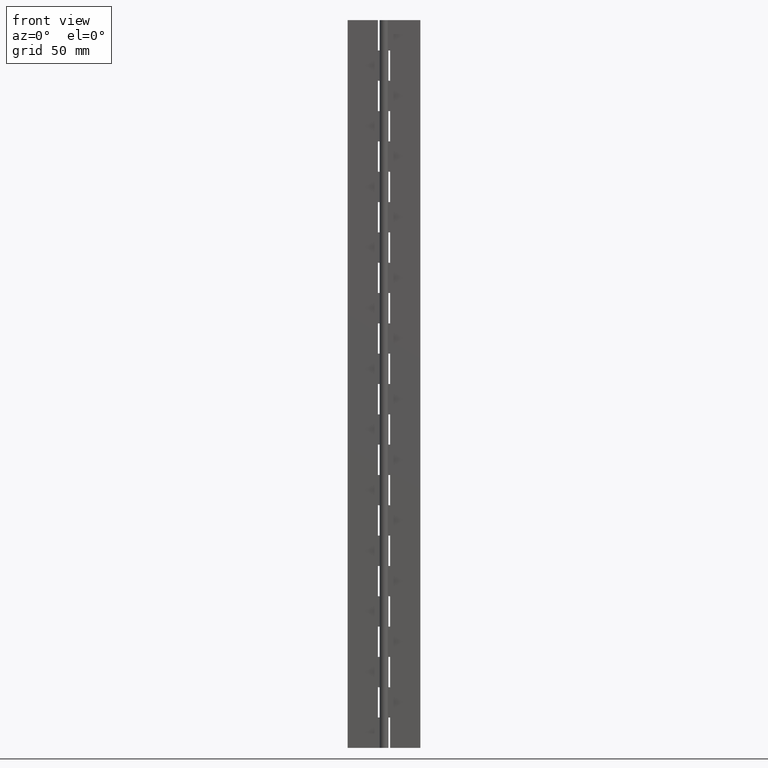
[diagram: clean part render]
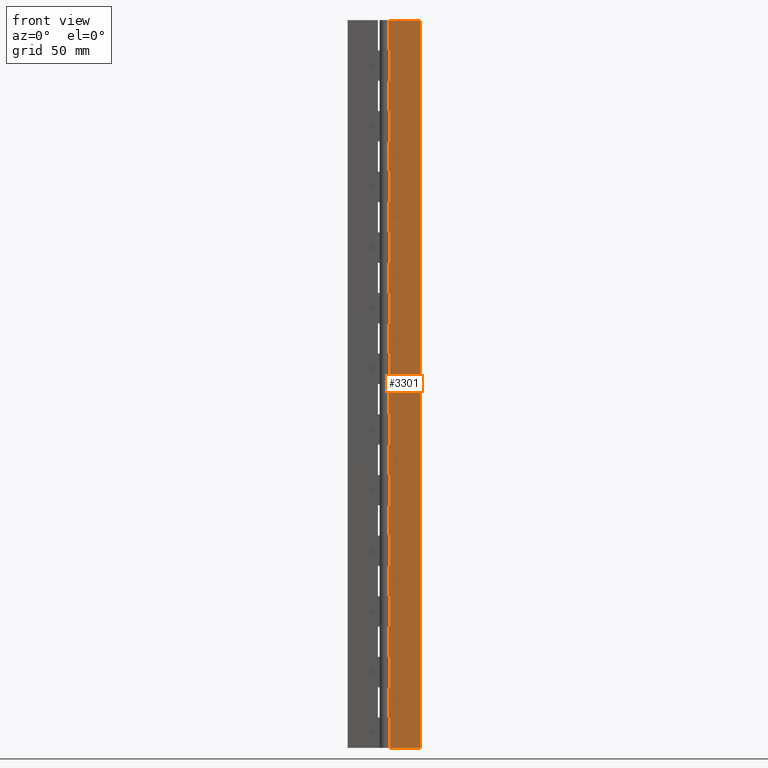
[diagram: same view with one face highlighted and labeled with its STEP entity id]
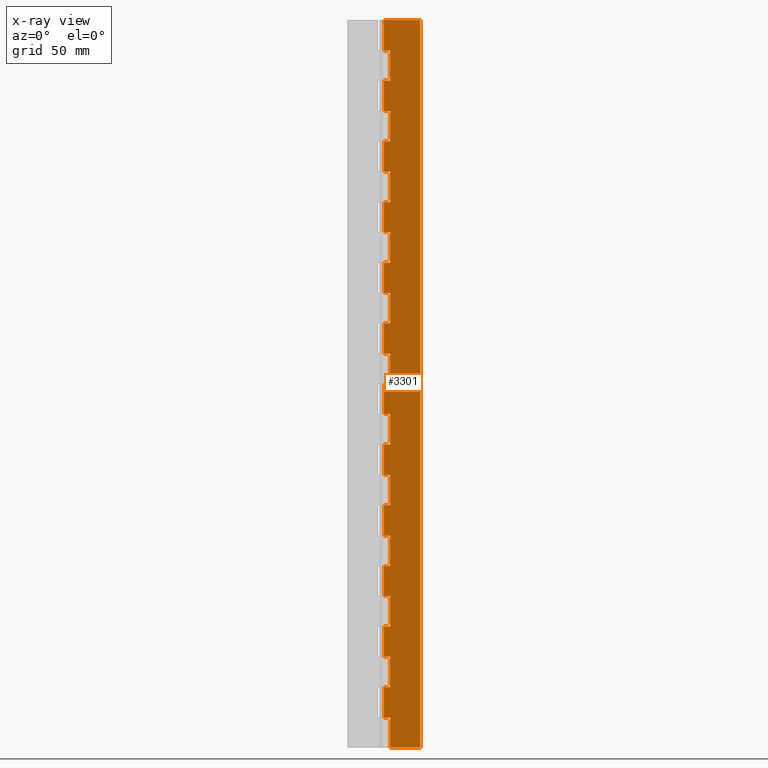
[diagram: x-ray of the same camera — body ghosted, the highlighted face saturated]
A machine part, front view. The second image highlights one B-rep face of the part: STEP entity #3301.
The next image is the same camera in x-ray: the body ghosted, the highlighted face saturated — about 0% of this face is hidden behind the body in this view.
In plain terms, the highlighted face is a freeform B-spline surface patch.
Its self-contained STEP definition (entity closure, byte-faithful):
#51=CARTESIAN_POINT('',(0.0,1.0,287.500000000000000));
#52=VERTEX_POINT('',#51);
#107=CARTESIAN_POINT('',(2.500000000000200,1.0,287.500000000000000));
#108=VERTEX_POINT('',#107);
#114=CARTESIAN_POINT('',(0.0,1.0,287.500000000000000));
#115=CARTESIAN_POINT('',(2.500000000000200,1.0,287.500000000000000));
#116=QUASI_UNIFORM_CURVE('',1,(#114,#115),.UNSPECIFIED.,.F.,.U.);
#117=EDGE_CURVE('',#52,#108,#116,.T.);
#135=CARTESIAN_POINT('',(2.500000000000200,1.0,275.0));
#136=VERTEX_POINT('',#135);
#142=CARTESIAN_POINT('',(2.500000000000200,1.0,287.500000000000000));
#143=CARTESIAN_POINT('',(2.500000000000200,1.0,275.0));
#144=QUASI_UNIFORM_CURVE('',1,(#142,#143),.UNSPECIFIED.,.F.,.U.);
#145=EDGE_CURVE('',#108,#136,#144,.T.);
#191=CARTESIAN_POINT('',(0.0,1.0,275.0));
#192=VERTEX_POINT('',#191);
#212=CARTESIAN_POINT('',(2.500000000000200,1.0,275.0));
#213=CARTESIAN_POINT('',(0.0,1.0,275.0));
#214=QUASI_UNIFORM_CURVE('',1,(#212,#213),.UNSPECIFIED.,.F.,.U.);
#215=EDGE_CURVE('',#136,#192,#214,.T.);
#227=CARTESIAN_POINT('',(0.0,1.0,262.500000000000000));
#228=VERTEX_POINT('',#227);
#283=CARTESIAN_POINT('',(2.500000000000200,1.0,262.500000000000000));
#284=VERTEX_POINT('',#283);
#290=CARTESIAN_POINT('',(0.0,1.0,262.500000000000000));
#291=CARTESIAN_POINT('',(2.500000000000200,1.0,262.500000000000000));
#292=QUASI_UNIFORM_CURVE('',1,(#290,#291),.UNSPECIFIED.,.F.,.U.);
#293=EDGE_CURVE('',#228,#284,#292,.T.);
#311=CARTESIAN_POINT('',(2.500000000000200,1.0,250.0));
#312=VERTEX_POINT('',#311);
#318=CARTESIAN_POINT('',(2.500000000000200,1.0,262.500000000000000));
#319=CARTESIAN_POINT('',(2.500000000000200,1.0,250.0));
#320=QUASI_UNIFORM_CURVE('',1,(#318,#319),.UNSPECIFIED.,.F.,.U.);
#321=EDGE_CURVE('',#284,#312,#320,.T.);
#367=CARTESIAN_POINT('',(0.0,1.0,250.0));
#368=VERTEX_POINT('',#367);
#388=CARTESIAN_POINT('',(2.500000000000200,1.0,250.0));
#389=CARTESIAN_POINT('',(0.0,1.0,250.0));
#390=QUASI_UNIFORM_CURVE('',1,(#388,#389),.UNSPECIFIED.,.F.,.U.);
#391=EDGE_CURVE('',#312,#368,#390,.T.);
#403=CARTESIAN_POINT('',(0.0,1.0,237.500000000000000));
#404=VERTEX_POINT('',#403);
#459=CARTESIAN_POINT('',(2.500000000000200,1.0,237.500000000000000));
#460=VERTEX_POINT('',#459);
#466=CARTESIAN_POINT('',(0.0,1.0,237.500000000000000));
#467=CARTESIAN_POINT('',(2.500000000000200,1.0,237.500000000000000));
#468=QUASI_UNIFORM_CURVE('',1,(#466,#467),.UNSPECIFIED.,.F.,.U.);
#469=EDGE_CURVE('',#404,#460,#468,.T.);
#487=CARTESIAN_POINT('',(2.500000000000200,1.0,225.0));
#488=VERTEX_POINT('',#487);
#494=CARTESIAN_POINT('',(2.500000000000200,1.0,237.500000000000000));
#495=CARTESIAN_POINT('',(2.500000000000200,1.0,225.0));
#496=QUASI_UNIFORM_CURVE('',1,(#494,#495),.UNSPECIFIED.,.F.,.U.);
#497=EDGE_CURVE('',#460,#488,#496,.T.);
#543=CARTESIAN_POINT('',(0.0,1.0,225.0));
#544=VERTEX_POINT('',#543);
#564=CARTESIAN_POINT('',(2.500000000000200,1.0,225.0));
#565=CARTESIAN_POINT('',(0.0,1.0,225.0));
#566=QUASI_UNIFORM_CURVE('',1,(#564,#565),.UNSPECIFIED.,.F.,.U.);
#567=EDGE_CURVE('',#488,#544,#566,.T.);
#579=CARTESIAN_POINT('',(0.0,1.0,212.500000000000000));
#580=VERTEX_POINT('',#579);
#635=CARTESIAN_POINT('',(2.500000000000200,1.0,212.500000000000000));
#636=VERTEX_POINT('',#635);
#642=CARTESIAN_POINT('',(0.0,1.0,212.500000000000000));
#643=CARTESIAN_POINT('',(2.500000000000200,1.0,212.500000000000000));
#644=QUASI_UNIFORM_CURVE('',1,(#642,#643),.UNSPECIFIED.,.F.,.U.);
#645=EDGE_CURVE('',#580,#636,#644,.T.);
#663=CARTESIAN_POINT('',(2.500000000000200,1.0,200.0));
#664=VERTEX_POINT('',#663);
#670=CARTESIAN_POINT('',(2.500000000000200,1.0,212.500000000000000));
#671=CARTESIAN_POINT('',(2.500000000000200,1.0,200.0));
#672=QUASI_UNIFORM_CURVE('',1,(#670,#671),.UNSPECIFIED.,.F.,.U.);
#673=EDGE_CURVE('',#636,#664,#672,.T.);
#719=CARTESIAN_POINT('',(0.0,1.0,200.0));
#720=VERTEX_POINT('',#719);
#740=CARTESIAN_POINT('',(2.500000000000200,1.0,200.0));
#741=CARTESIAN_POINT('',(0.0,1.0,200.0));
#742=QUASI_UNIFORM_CURVE('',1,(#740,#741),.UNSPECIFIED.,.F.,.U.);
#743=EDGE_CURVE('',#664,#720,#742,.T.);
#755=CARTESIAN_POINT('',(0.0,1.0,187.500000000000000));
#756=VERTEX_POINT('',#755);
#811=CARTESIAN_POINT('',(2.500000000000200,1.0,187.500000000000000));
#812=VERTEX_POINT('',#811);
#818=CARTESIAN_POINT('',(0.0,1.0,187.500000000000000));
#819=CARTESIAN_POINT('',(2.500000000000200,1.0,187.500000000000000));
#820=QUASI_UNIFORM_CURVE('',1,(#818,#819),.UNSPECIFIED.,.F.,.U.);
#821=EDGE_CURVE('',#756,#812,#820,.T.);
#839=CARTESIAN_POINT('',(2.500000000000200,1.0,175.0));
#840=VERTEX_POINT('',#839);
#846=CARTESIAN_POINT('',(2.500000000000200,1.0,187.500000000000000));
#847=CARTESIAN_POINT('',(2.500000000000200,1.0,175.0));
#848=QUASI_UNIFORM_CURVE('',1,(#846,#847),.UNSPECIFIED.,.F.,.U.);
#849=EDGE_CURVE('',#812,#840,#848,.T.);
#895=CARTESIAN_POINT('',(0.0,1.0,175.0));
#896=VERTEX_POINT('',#895);
#916=CARTESIAN_POINT('',(2.500000000000200,1.0,175.0));
#917=CARTESIAN_POINT('',(0.0,1.0,175.0));
#918=QUASI_UNIFORM_CURVE('',1,(#916,#917),.UNSPECIFIED.,.F.,.U.);
#919=EDGE_CURVE('',#840,#896,#918,.T.);
#931=CARTESIAN_POINT('',(0.0,1.0,162.500000000000000));
#932=VERTEX_POINT('',#931);
#987=CARTESIAN_POINT('',(2.500000000000200,1.0,162.500000000000000));
#988=VERTEX_POINT('',#987);
#994=CARTESIAN_POINT('',(0.0,1.0,162.500000000000000));
#995=CARTESIAN_POINT('',(2.500000000000200,1.0,162.500000000000000));
#996=QUASI_UNIFORM_CURVE('',1,(#994,#995),.UNSPECIFIED.,.F.,.U.);
#997=EDGE_CURVE('',#932,#988,#996,.T.);
#1015=CARTESIAN_POINT('',(2.500000000000200,1.0,150.0));
#1016=VERTEX_POINT('',#1015);
#1022=CARTESIAN_POINT('',(2.500000000000200,1.0,162.500000000000000));
#1023=CARTESIAN_POINT('',(2.500000000000200,1.0,150.0));
#1024=QUASI_UNIFORM_CURVE('',1,(#1022,#1023),.UNSPECIFIED.,.F.,.U.);
#1025=EDGE_CURVE('',#988,#1016,#1024,.T.);
#1071=CARTESIAN_POINT('',(0.0,1.0,150.0));
#1072=VERTEX_POINT('',#1071);
#1092=CARTESIAN_POINT('',(2.500000000000200,1.0,150.0));
#1093=CARTESIAN_POINT('',(0.0,1.0,150.0));
#1094=QUASI_UNIFORM_CURVE('',1,(#1092,#1093),.UNSPECIFIED.,.F.,.U.);
#1095=EDGE_CURVE('',#1016,#1072,#1094,.T.);
#1107=CARTESIAN_POINT('',(0.0,1.0,137.500000000000000));
#1108=VERTEX_POINT('',#1107);
#1163=CARTESIAN_POINT('',(2.500000000000200,1.0,137.500000000000000));
#1164=VERTEX_POINT('',#1163);
#1170=CARTESIAN_POINT('',(0.0,1.0,137.500000000000000));
#1171=CARTESIAN_POINT('',(2.500000000000200,1.0,137.500000000000000));
#1172=QUASI_UNIFORM_CURVE('',1,(#1170,#1171),.UNSPECIFIED.,.F.,.U.);
#1173=EDGE_CURVE('',#1108,#1164,#1172,.T.);
#1191=CARTESIAN_POINT('',(2.500000000000200,1.0,125.0));
#1192=VERTEX_POINT('',#1191);
#1198=CARTESIAN_POINT('',(2.500000000000200,1.0,137.500000000000000));
#1199=CARTESIAN_POINT('',(2.500000000000200,1.0,125.0));
#1200=QUASI_UNIFORM_CURVE('',1,(#1198,#1199),.UNSPECIFIED.,.F.,.U.);
#1201=EDGE_CURVE('',#1164,#1192,#1200,.T.);
#1247=CARTESIAN_POINT('',(0.0,1.0,125.0));
#1248=VERTEX_POINT('',#1247);
#1268=CARTESIAN_POINT('',(2.500000000000200,1.0,125.0));
#1269=CARTESIAN_POINT('',(0.0,1.0,125.0));
#1270=QUASI_UNIFORM_CURVE('',1,(#1268,#1269),.UNSPECIFIED.,.F.,.U.);
#1271=EDGE_CURVE('',#1192,#1248,#1270,.T.);
#1283=CARTESIAN_POINT('',(0.0,1.0,112.500000000000000));
#1284=VERTEX_POINT('',#1283);
#1339=CARTESIAN_POINT('',(2.500000000000200,1.0,112.500000000000000));
#1340=VERTEX_POINT('',#1339);
#1346=CARTESIAN_POINT('',(0.0,1.0,112.500000000000000));
#1347=CARTESIAN_POINT('',(2.500000000000200,1.0,112.500000000000000));
#1348=QUASI_UNIFORM_CURVE('',1,(#1346,#1347),.UNSPECIFIED.,.F.,.U.);
#1349=EDGE_CURVE('',#1284,#1340,#1348,.T.);
#1367=CARTESIAN_POINT('',(2.500000000000200,1.0,100.0));
#1368=VERTEX_POINT('',#1367);
#1374=CARTESIAN_POINT('',(2.500000000000200,1.0,112.500000000000000));
#1375=CARTESIAN_POINT('',(2.500000000000200,1.0,100.0));
#1376=QUASI_UNIFORM_CURVE('',1,(#1374,#1375),.UNSPECIFIED.,.F.,.U.);
#1377=EDGE_CURVE('',#1340,#1368,#1376,.T.);
#1423=CARTESIAN_POINT('',(0.0,1.0,100.0));
#1424=VERTEX_POINT('',#1423);
#1444=CARTESIAN_POINT('',(2.500000000000200,1.0,100.0));
#1445=CARTESIAN_POINT('',(0.0,1.0,100.0));
#1446=QUASI_UNIFORM_CURVE('',1,(#1444,#1445),.UNSPECIFIED.,.F.,.U.);
#1447=EDGE_CURVE('',#1368,#1424,#1446,.T.);
#1459=CARTESIAN_POINT('',(0.0,1.0,87.500000000000000));
#1460=VERTEX_POINT('',#1459);
#1515=CARTESIAN_POINT('',(2.500000000000200,1.0,87.500000000000000));
#1516=VERTEX_POINT('',#1515);
#1522=CARTESIAN_POINT('',(0.0,1.0,87.500000000000000));
#1523=CARTESIAN_POINT('',(2.500000000000200,1.0,87.500000000000000));
#1524=QUASI_UNIFORM_CURVE('',1,(#1522,#1523),.UNSPECIFIED.,.F.,.U.);
#1525=EDGE_CURVE('',#1460,#1516,#1524,.T.);
#1543=CARTESIAN_POINT('',(2.500000000000200,1.0,75.0));
#1544=VERTEX_POINT('',#1543);
#1550=CARTESIAN_POINT('',(2.500000000000200,1.0,87.500000000000000));
#1551=CARTESIAN_POINT('',(2.500000000000200,1.0,75.0));
#1552=QUASI_UNIFORM_CURVE('',1,(#1550,#1551),.UNSPECIFIED.,.F.,.U.);
#1553=EDGE_CURVE('',#1516,#1544,#1552,.T.);
#1599=CARTESIAN_POINT('',(0.0,1.0,75.0));
#1600=VERTEX_POINT('',#1599);
#1620=CARTESIAN_POINT('',(2.500000000000200,1.0,75.0));
#1621=CARTESIAN_POINT('',(0.0,1.0,75.0));
#1622=QUASI_UNIFORM_CURVE('',1,(#1620,#1621),.UNSPECIFIED.,.F.,.U.);
#1623=EDGE_CURVE('',#1544,#1600,#1622,.T.);
#1635=CARTESIAN_POINT('',(0.0,1.0,62.500000000000000));
#1636=VERTEX_POINT('',#1635);
#1691=CARTESIAN_POINT('',(2.500000000000200,1.0,62.500000000000000));
#1692=VERTEX_POINT('',#1691);
#1698=CARTESIAN_POINT('',(0.0,1.0,62.500000000000000));
#1699=CARTESIAN_POINT('',(2.500000000000200,1.0,62.500000000000000));
#1700=QUASI_UNIFORM_CURVE('',1,(#1698,#1699),.UNSPECIFIED.,.F.,.U.);
#1701=EDGE_CURVE('',#1636,#1692,#1700,.T.);
#1719=CARTESIAN_POINT('',(2.500000000000200,1.0,50.0));
#1720=VERTEX_POINT('',#1719);
#1726=CARTESIAN_POINT('',(2.500000000000200,1.0,62.500000000000000));
#1727=CARTESIAN_POINT('',(2.500000000000200,1.0,50.0));
#1728=QUASI_UNIFORM_CURVE('',1,(#1726,#1727),.UNSPECIFIED.,.F.,.U.);
#1729=EDGE_CURVE('',#1692,#1720,#1728,.T.);
#1775=CARTESIAN_POINT('',(0.0,1.0,50.0));
#1776=VERTEX_POINT('',#1775);
#1796=CARTESIAN_POINT('',(2.500000000000200,1.0,50.0));
#1797=CARTESIAN_POINT('',(0.0,1.0,50.0));
#1798=QUASI_UNIFORM_CURVE('',1,(#1796,#1797),.UNSPECIFIED.,.F.,.U.);
#1799=EDGE_CURVE('',#1720,#1776,#1798,.T.);
#1811=CARTESIAN_POINT('',(0.0,1.0,37.500000000000000));
#1812=VERTEX_POINT('',#1811);
#1867=CARTESIAN_POINT('',(2.500000000000200,1.0,37.500000000000000));
#1868=VERTEX_POINT('',#1867);
#1874=CARTESIAN_POINT('',(0.0,1.0,37.500000000000000));
#1875=CARTESIAN_POINT('',(2.500000000000200,1.0,37.500000000000000));
#1876=QUASI_UNIFORM_CURVE('',1,(#1874,#1875),.UNSPECIFIED.,.F.,.U.);
#1877=EDGE_CURVE('',#1812,#1868,#1876,.T.);
#1895=CARTESIAN_POINT('',(2.500000000000200,1.0,25.0));
#1896=VERTEX_POINT('',#1895);
#1902=CARTESIAN_POINT('',(2.500000000000200,1.0,37.500000000000000));
#1903=CARTESIAN_POINT('',(2.500000000000200,1.0,25.0));
#1904=QUASI_UNIFORM_CURVE('',1,(#1902,#1903),.UNSPECIFIED.,.F.,.U.);
#1905=EDGE_CURVE('',#1868,#1896,#1904,.T.);
#1951=CARTESIAN_POINT('',(0.0,1.0,25.0));
#1952=VERTEX_POINT('',#1951);
#1972=CARTESIAN_POINT('',(2.500000000000200,1.0,25.0));
#1973=CARTESIAN_POINT('',(0.0,1.0,25.0));
#1974=QUASI_UNIFORM_CURVE('',1,(#1972,#1973),.UNSPECIFIED.,.F.,.U.);
#1975=EDGE_CURVE('',#1896,#1952,#1974,.T.);
#1987=CARTESIAN_POINT('',(0.0,1.0,12.500000000000000));
#1988=VERTEX_POINT('',#1987);
#2043=CARTESIAN_POINT('',(2.500000000000200,1.0,12.500000000000000));
#2044=VERTEX_POINT('',#2043);
#2050=CARTESIAN_POINT('',(0.0,1.0,12.500000000000000));
#2051=CARTESIAN_POINT('',(2.500000000000200,1.0,12.500000000000000));
#2052=QUASI_UNIFORM_CURVE('',1,(#2050,#2051),.UNSPECIFIED.,.F.,.U.);
#2053=EDGE_CURVE('',#1988,#2044,#2052,.T.);
#2071=CARTESIAN_POINT('',(2.500000000000200,1.0,0.0));
#2072=VERTEX_POINT('',#2071);
#2078=CARTESIAN_POINT('',(2.500000000000200,1.0,12.500000000000000));
#2079=CARTESIAN_POINT('',(2.500000000000200,1.0,0.0));
#2080=QUASI_UNIFORM_CURVE('',1,(#2078,#2079),.UNSPECIFIED.,.F.,.U.);
#2081=EDGE_CURVE('',#2044,#2072,#2080,.T.);
#2128=CARTESIAN_POINT('',(0.0,1.0,300.0));
#2129=VERTEX_POINT('',#2128);
#2149=CARTESIAN_POINT('',(15.0,1.0,300.0));
#2150=VERTEX_POINT('',#2149);
#2151=CARTESIAN_POINT('',(15.0,1.0,300.0));
#2152=CARTESIAN_POINT('',(0.0,1.0,300.0));
#2153=QUASI_UNIFORM_CURVE('',1,(#2151,#2152),.UNSPECIFIED.,.F.,.U.);
#2154=EDGE_CURVE('',#2150,#2129,#2153,.T.);
#2171=CARTESIAN_POINT('',(15.0,1.0,0.0));
#2172=VERTEX_POINT('',#2171);
#2184=CARTESIAN_POINT('',(15.0,1.0,300.0));
#2185=CARTESIAN_POINT('',(15.0,1.0,0.0));
#2186=QUASI_UNIFORM_CURVE('',1,(#2184,#2185),.UNSPECIFIED.,.F.,.U.);
#2187=EDGE_CURVE('',#2150,#2172,#2186,.T.);
#2204=CARTESIAN_POINT('',(15.0,1.0,0.0));
#2205=CARTESIAN_POINT('',(2.500000000000200,1.0,0.0));
#2206=QUASI_UNIFORM_CURVE('',1,(#2204,#2205),.UNSPECIFIED.,.F.,.U.);
#2207=EDGE_CURVE('',#2172,#2072,#2206,.T.);
#2287=CARTESIAN_POINT('',(0.0,1.0,25.0));
#2288=CARTESIAN_POINT('',(0.0,1.0,12.500000000000000));
#2289=QUASI_UNIFORM_CURVE('',1,(#2287,#2288),.UNSPECIFIED.,.F.,.U.);
#2290=EDGE_CURVE('',#1952,#1988,#2289,.T.);
#2373=CARTESIAN_POINT('',(0.0,1.0,50.0));
#2374=CARTESIAN_POINT('',(0.0,1.0,37.500000000000000));
#2375=QUASI_UNIFORM_CURVE('',1,(#2373,#2374),.UNSPECIFIED.,.F.,.U.);
#2376=EDGE_CURVE('',#1776,#1812,#2375,.T.);
#2459=CARTESIAN_POINT('',(0.0,1.0,75.0));
#2460=CARTESIAN_POINT('',(0.0,1.0,62.500000000000000));
#2461=QUASI_UNIFORM_CURVE('',1,(#2459,#2460),.UNSPECIFIED.,.F.,.U.);
#2462=EDGE_CURVE('',#1600,#1636,#2461,.T.);
#2545=CARTESIAN_POINT('',(0.0,1.0,100.0));
#2546=CARTESIAN_POINT('',(0.0,1.0,87.500000000000000));
#2547=QUASI_UNIFORM_CURVE('',1,(#2545,#2546),.UNSPECIFIED.,.F.,.U.);
#2548=EDGE_CURVE('',#1424,#1460,#2547,.T.);
#2631=CARTESIAN_POINT('',(0.0,1.0,125.0));
#2632=CARTESIAN_POINT('',(0.0,1.0,112.500000000000000));
#2633=QUASI_UNIFORM_CURVE('',1,(#2631,#2632),.UNSPECIFIED.,.F.,.U.);
#2634=EDGE_CURVE('',#1248,#1284,#2633,.T.);
#2717=CARTESIAN_POINT('',(0.0,1.0,150.0));
#2718=CARTESIAN_POINT('',(0.0,1.0,137.500000000000000));
#2719=QUASI_UNIFORM_CURVE('',1,(#2717,#2718),.UNSPECIFIED.,.F.,.U.);
#2720=EDGE_CURVE('',#1072,#1108,#2719,.T.);
#2803=CARTESIAN_POINT('',(0.0,1.0,175.0));
#2804=CARTESIAN_POINT('',(0.0,1.0,162.500000000000000));
#2805=QUASI_UNIFORM_CURVE('',1,(#2803,#2804),.UNSPECIFIED.,.F.,.U.);
#2806=EDGE_CURVE('',#896,#932,#2805,.T.);
#2889=CARTESIAN_POINT('',(0.0,1.0,200.0));
#2890=CARTESIAN_POINT('',(0.0,1.0,187.500000000000000));
#2891=QUASI_UNIFORM_CURVE('',1,(#2889,#2890),.UNSPECIFIED.,.F.,.U.);
#2892=EDGE_CURVE('',#720,#756,#2891,.T.);
#2975=CARTESIAN_POINT('',(0.0,1.0,225.0));
#2976=CARTESIAN_POINT('',(0.0,1.0,212.500000000000000));
#2977=QUASI_UNIFORM_CURVE('',1,(#2975,#2976),.UNSPECIFIED.,.F.,.U.);
#2978=EDGE_CURVE('',#544,#580,#2977,.T.);
#3061=CARTESIAN_POINT('',(0.0,1.0,250.0));
#3062=CARTESIAN_POINT('',(0.0,1.0,237.500000000000000));
#3063=QUASI_UNIFORM_CURVE('',1,(#3061,#3062),.UNSPECIFIED.,.F.,.U.);
#3064=EDGE_CURVE('',#368,#404,#3063,.T.);
#3202=CARTESIAN_POINT('',(0.0,1.0,300.0));
#3203=CARTESIAN_POINT('',(0.0,1.0,287.500000000000000));
#3204=QUASI_UNIFORM_CURVE('',1,(#3202,#3203),.UNSPECIFIED.,.F.,.U.);
#3205=EDGE_CURVE('',#2129,#52,#3204,.T.);
#3233=CARTESIAN_POINT('',(0.0,1.0,275.0));
#3234=CARTESIAN_POINT('',(0.0,1.0,262.500000000000000));
#3235=QUASI_UNIFORM_CURVE('',1,(#3233,#3234),.UNSPECIFIED.,.F.,.U.);
#3236=EDGE_CURVE('',#192,#228,#3235,.T.);
#3244=CARTESIAN_POINT('',(-0.749249970927090,1.0,314.984999418541800));
#3245=CARTESIAN_POINT('',(-0.749249970927090,1.0,-14.985007465168829));
#3246=CARTESIAN_POINT('',(15.749250373258439,1.0,314.984999418541800));
#3247=CARTESIAN_POINT('',(15.749250373258439,1.0,-14.985007465168829));
#3248=B_SPLINE_SURFACE_WITH_KNOTS('',1,1,((#3244,#3246),(#3245,#3247)),.UNSPECIFIED.,.F.,.F.,.U.,(2,2),(2,2),(0.0,329.970006883710710),(0.0,16.498500344185530),.UNSPECIFIED.);
#3249=ORIENTED_EDGE('',*,*,#145,.T.);
#3250=ORIENTED_EDGE('',*,*,#215,.T.);
#3251=ORIENTED_EDGE('',*,*,#3236,.T.);
#3252=ORIENTED_EDGE('',*,*,#293,.T.);
#3253=ORIENTED_EDGE('',*,*,#321,.T.);
#3254=ORIENTED_EDGE('',*,*,#391,.T.);
#3255=ORIENTED_EDGE('',*,*,#3064,.T.);
#3256=ORIENTED_EDGE('',*,*,#469,.T.);
#3257=ORIENTED_EDGE('',*,*,#497,.T.);
#3258=ORIENTED_EDGE('',*,*,#567,.T.);
#3259=ORIENTED_EDGE('',*,*,#2978,.T.);
#3260=ORIENTED_EDGE('',*,*,#645,.T.);
#3261=ORIENTED_EDGE('',*,*,#673,.T.);
#3262=ORIENTED_EDGE('',*,*,#743,.T.);
#3263=ORIENTED_EDGE('',*,*,#2892,.T.);
#3264=ORIENTED_EDGE('',*,*,#821,.T.);
#3265=ORIENTED_EDGE('',*,*,#849,.T.);
#3266=ORIENTED_EDGE('',*,*,#919,.T.);
#3267=ORIENTED_EDGE('',*,*,#2806,.T.);
#3268=ORIENTED_EDGE('',*,*,#997,.T.);
#3269=ORIENTED_EDGE('',*,*,#1025,.T.);
#3270=ORIENTED_EDGE('',*,*,#1095,.T.);
#3271=ORIENTED_EDGE('',*,*,#2720,.T.);
#3272=ORIENTED_EDGE('',*,*,#1173,.T.);
#3273=ORIENTED_EDGE('',*,*,#1201,.T.);
#3274=ORIENTED_EDGE('',*,*,#1271,.T.);
#3275=ORIENTED_EDGE('',*,*,#2634,.T.);
#3276=ORIENTED_EDGE('',*,*,#1349,.T.);
#3277=ORIENTED_EDGE('',*,*,#1377,.T.);
#3278=ORIENTED_EDGE('',*,*,#1447,.T.);
#3279=ORIENTED_EDGE('',*,*,#2548,.T.);
#3280=ORIENTED_EDGE('',*,*,#1525,.T.);
#3281=ORIENTED_EDGE('',*,*,#1553,.T.);
#3282=ORIENTED_EDGE('',*,*,#1623,.T.);
#3283=ORIENTED_EDGE('',*,*,#2462,.T.);
#3284=ORIENTED_EDGE('',*,*,#1701,.T.);
#3285=ORIENTED_EDGE('',*,*,#1729,.T.);
#3286=ORIENTED_EDGE('',*,*,#1799,.T.);
#3287=ORIENTED_EDGE('',*,*,#2376,.T.);
#3288=ORIENTED_EDGE('',*,*,#1877,.T.);
#3289=ORIENTED_EDGE('',*,*,#1905,.T.);
#3290=ORIENTED_EDGE('',*,*,#1975,.T.);
#3291=ORIENTED_EDGE('',*,*,#2290,.T.);
#3292=ORIENTED_EDGE('',*,*,#2053,.T.);
#3293=ORIENTED_EDGE('',*,*,#2081,.T.);
#3294=ORIENTED_EDGE('',*,*,#2207,.F.);
#3295=ORIENTED_EDGE('',*,*,#2187,.F.);
#3296=ORIENTED_EDGE('',*,*,#2154,.T.);
#3297=ORIENTED_EDGE('',*,*,#3205,.T.);
#3298=ORIENTED_EDGE('',*,*,#117,.T.);
#3299=EDGE_LOOP('',(#3249,#3250,#3251,#3252,#3253,#3254,#3255,#3256,#3257,#3258,#3259,#3260,#3261,#3262,#3263,#3264,#3265,#3266,#3267,#3268,#3269,#3270,#3271,#3272,#3273,#3274,#3275,#3276,#3277,#3278,#3279,#3280,#3281,#3282,#3283,#3284,#3285,#3286,#3287,#3288,#3289,#3290,#3291,#3292,#3293,#3294,#3295,#3296,#3297,#3298));
#3300=FACE_OUTER_BOUND('',#3299,.T.);
#3301=ADVANCED_FACE('',(#3300),#3248,.T.);